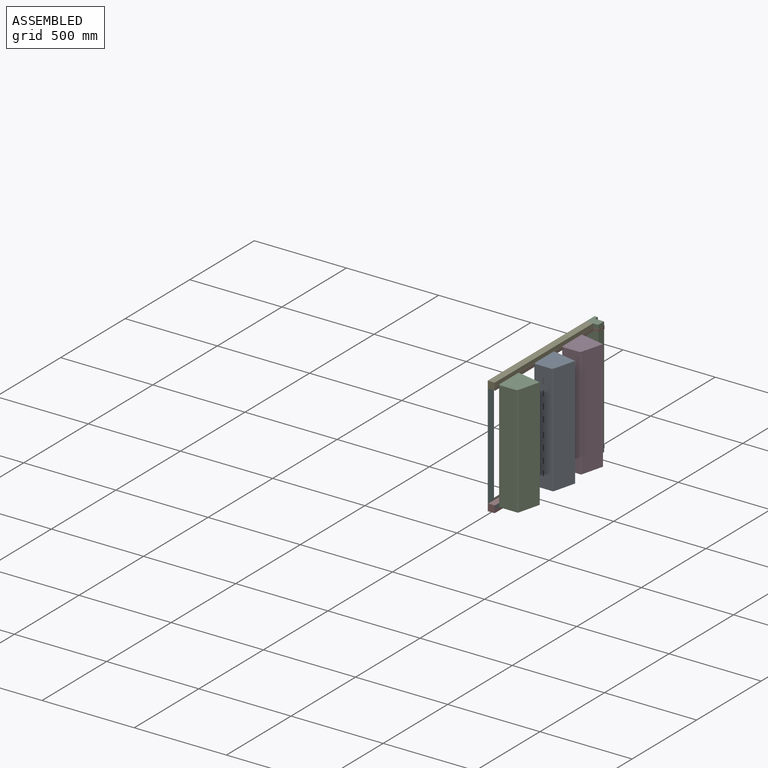
[diagram: assembled view]
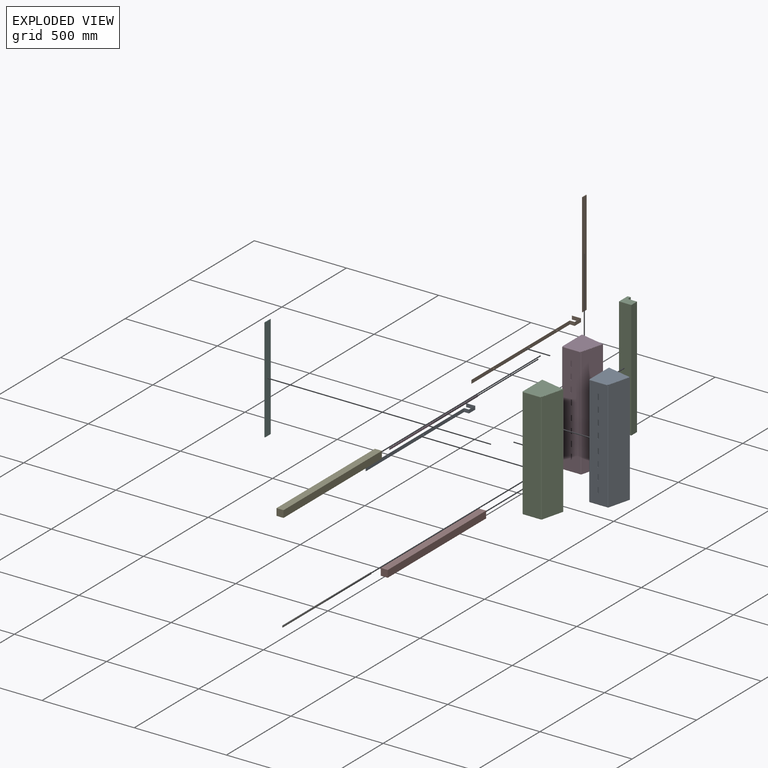
[diagram: exploded view]
GUIDED TOUR — MATED ASSEMBLY WITH SUBASSEMBLIES (Onshape document e24dba57bcac1407175b9171, AutoMate assembly e24dba57bcac1407175b9171_94eac4f6c8a923de0c3e7c80_e54bdbfbce681749a1011033_default)

This assembly has 24 component occurrences arranged in 12 top-level units: 10 individual components plus 2 subassemblies (S0, S1). The tour has two levels: first the top level, where each subassembly is treated as one rigid unit; then each subassembly is toured internally in its own section (nesting deeper than one subassembly level is flattened into its subassembly's section).

Components are labeled P0..P23 across the whole record; subassembly units are labeled S0..S1. A mate is a constraint between two units; its type names the relative motion it leaves free:
  FASTENED — locks the two components together rigidly (no relative motion),
  PLANAR — leaves sliding in the plane through the listed point (normal = the listed direction) and rotation about that normal free,
  SLIDER — leaves translation along the listed axis free.
Axis/direction vectors are unit vectors and 'through' points are millimeter coordinates, both in the assembly's world frame.

TOP-LEVEL MATES (between units; each subassembly's internal mates are listed in its own section)
  1. PLANAR "Planar 2": P10 <-> P3, direction (0.000, 1.000, 0.000) through (19.05, 0.00, -19.05) mm
  2. PLANAR "Planar 9": S0 <-> P3, direction (0.000, -1.000, 0.000) through (42.55, 45.72, -611.19) mm
  3. PLANAR "Planar 3": P3 <-> P10, direction (1.000, 0.000, 0.000) through (66.68, 22.22, 0.00) mm
  4. SLIDER "Slider 2": P15 <-> S1, axis (1.000, 0.000, 0.000) through (41.53, -319.53, -28.57) mm
  5. SLIDER "Slider 3": P19 <-> S0, axis (1.000, 0.000, 0.000) through (41.53, -593.34, -611.19) mm
  6. PLANAR "Planar 11": P15 <-> S0, direction (-1.000, 0.000, 0.000) through (40.77, -382.23, -319.89) mm
  7. PLANAR "Planar 5": S1 <-> P3, direction (0.000, -1.000, 0.000) through (42.54, 45.72, -28.57) mm
  8. FASTENED "Fastened 2": P14 <-> P3, direction (0.000, 1.000, 0.000) through (0.00, 0.00, -639.76) mm
  9. PLANAR "Planar 7": S0 <-> P14, direction (0.000, 0.000, 1.000) through (40.77, -2.03, -601.66) mm
  10. PLANAR "Planar 12": P19 <-> S1, direction (-1.000, 0.000, 0.000) through (40.77, -656.04, -319.87) mm
  11. FASTENED "Fastened 3": P10 <-> P11, direction (0.000, 0.000, -1.000) through (0.00, -762.00, -38.10) mm
  12. PLANAR "Planar 1": P10 <-> P3, direction (0.000, 0.000, 1.000) through (19.05, 0.00, 0.00) mm
  13. FASTENED "Fastened 5": P13 <-> P16, direction (0.000, 1.000, 0.000) through (0.00, -31.75, -601.66) mm
  14. PLANAR "Planar 6": S1 <-> P3, direction (-1.000, 0.000, 0.000) through (66.68, 22.22, -28.57) mm
  15. FASTENED "Fastened 4": P16 <-> P10, direction (0.000, 0.000, 1.000) through (0.00, 0.00, -38.10) mm
  16. PLANAR "Planar 4": S1 <-> P10, direction (0.000, 0.000, -1.000) through (40.00, -1.27, -38.10) mm
  17. PLANAR "Planar 10": P21 <-> S0, direction (-1.000, 0.000, 0.000) through (40.77, -166.11, -619.94) mm
  18. FASTENED "Fastened 6": P8 <-> P16, direction (0.000, 1.000, 0.000) through (0.00, -31.75, -38.10) mm
  19. SLIDER "Slider 1": S1 <-> P21, axis (1.000, 0.000, 0.000) through (43.18, -103.63, -28.57) mm
  20. PLANAR "Planar 8": S0 <-> P3, direction (-1.000, 0.000, 0.000) through (66.68, 22.22, -611.19) mm

TOP-LEVEL ASSEMBLY ORDER
  1. P21 — the base component [order verified]
  2. P15 [order verified]
  3. P19 [order verified]
  4. S0 [order verified]
  5. P14 [order verified]
  6. P16 [order verified]
  7. P3 [order verified]
  8. S1 [order verified]
  9. P8 [order verified]
  10. P13 [order verified]
  11. P10 [order verified]
  12. P11 [order verified]
Order-tag legend:
  [order verified] — this step's position reverses a verified removal order: the component was checked to insert without passing through the ones already placed.

Of the 24 component occurrences, 9 carry the full construction recipe — the FeatureScript program that regenerates the part's solid from scratch; the rest are supplied as boundary geometry only. Each toured unit is shown spotlighted twice — assembled, then exploded with a leader line back to its socket (green = recipe-attached component, orange = geometry-only, blue = subassembly unit; the rest desaturated gray).
NOTE — document 2 of 2 of this assembly tour. The two overview renders and the header above are repeated from document 1; the component sections below continue where the previous document stopped.
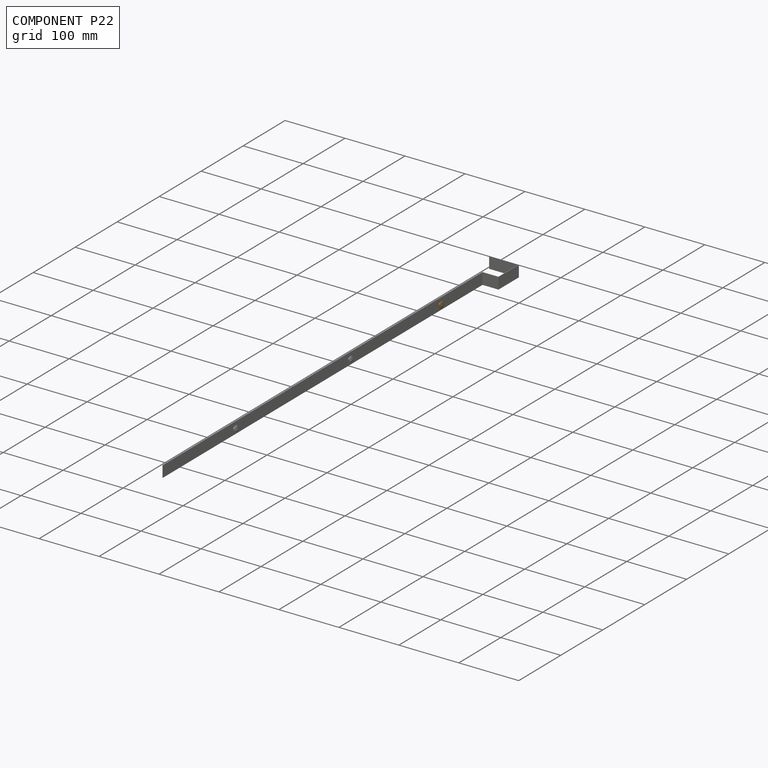
[diagram: component P22 — assembled]
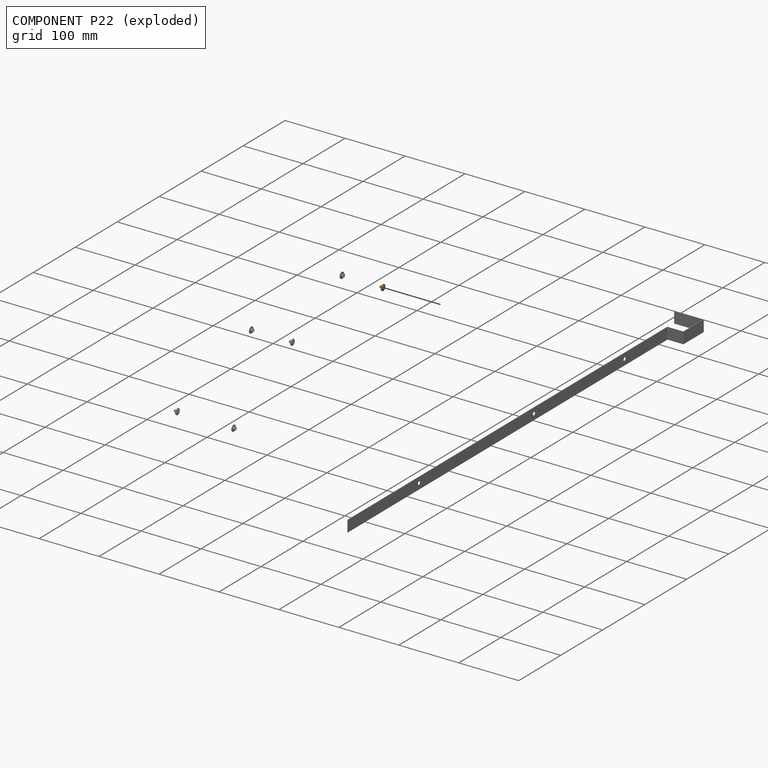
[diagram: component P22 — exploded]
COMPONENT P22 — geometry summary (no construction recipe available for this part):
  bounding box: 10.6 x 10.6 x 6.9 mm
  B-rep topology: 1 solid, 13 faces, 52 edges
  volume: 128 mm^3 (16% of its bounding box)
Held by: PLANAR mate "Planar 2" to P12; SLIDER mate "Slider 2" to P12; PLANAR mate "Planar 2" to P12; SLIDER mate "Slider 2" to P12.
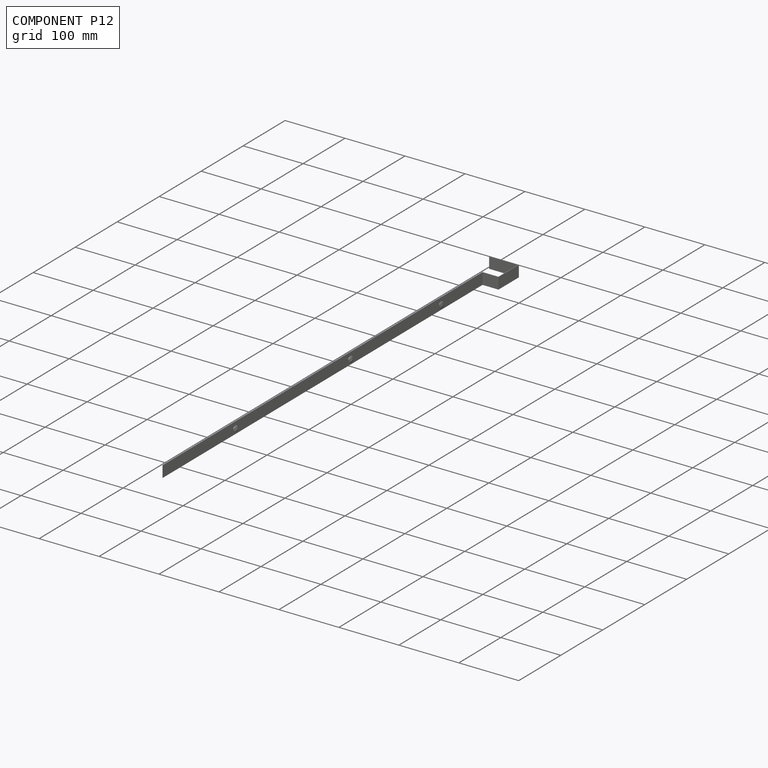
[diagram: component P12 — assembled]
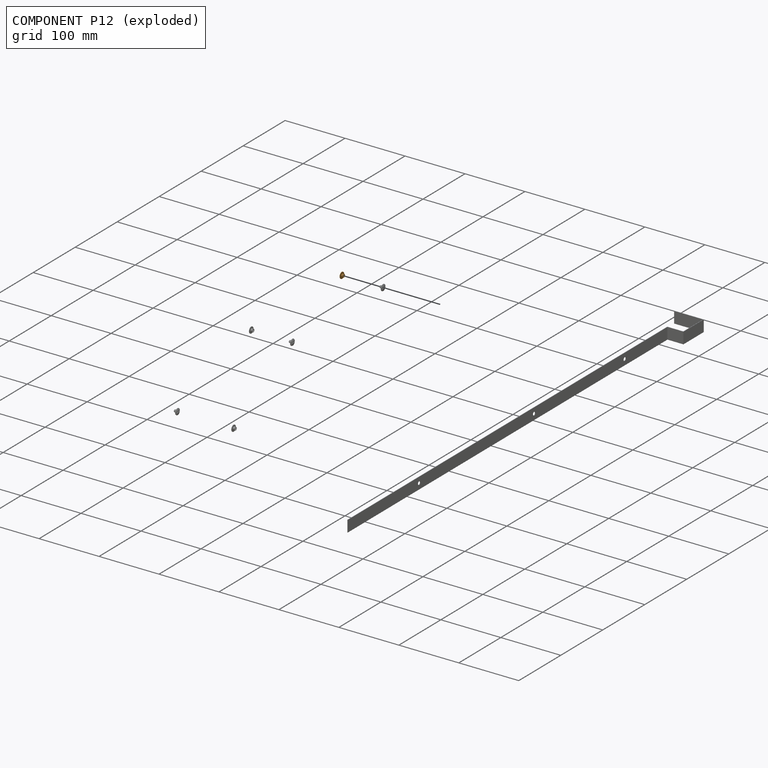
[diagram: component P12 — exploded]
COMPONENT P12 — geometry summary (no construction recipe available for this part):
  bounding box: 10.3 x 10.3 x 5.4 mm
  B-rep topology: 1 solid, 10 faces, 44 edges
  volume: 107 mm^3 (19% of its bounding box)
Held by: PLANAR mate "Planar 1" to P2; PLANAR mate "Planar 2" to P22; SLIDER mate "Slider 2" to P22; SLIDER mate "Slider 1" to P2; PLANAR mate "Planar 2" to P22; SLIDER mate "Slider 2" to P22; SLIDER mate "Slider 1" to P2; PLANAR mate "Planar 1" to P2.
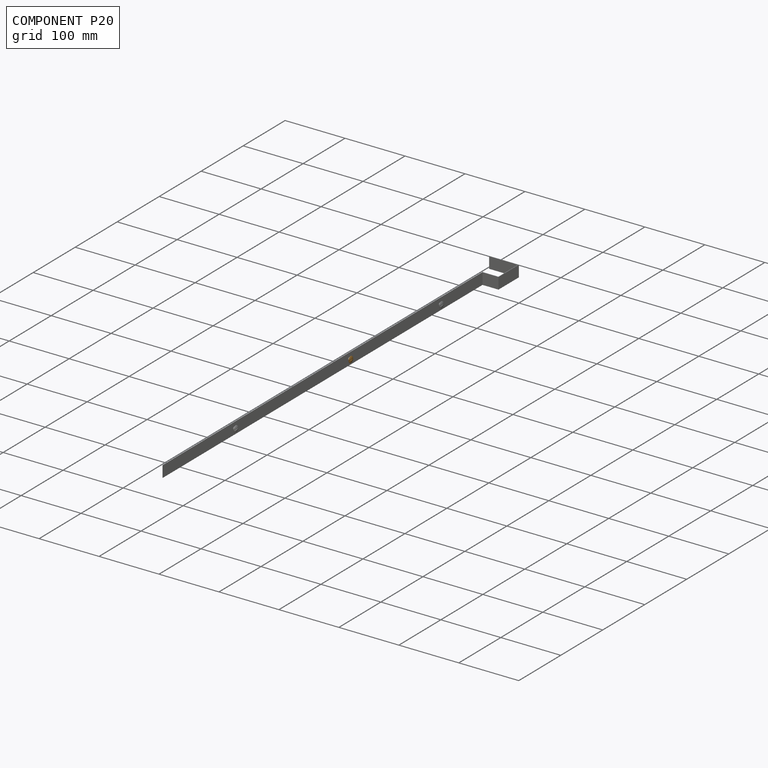
[diagram: component P20 — assembled]
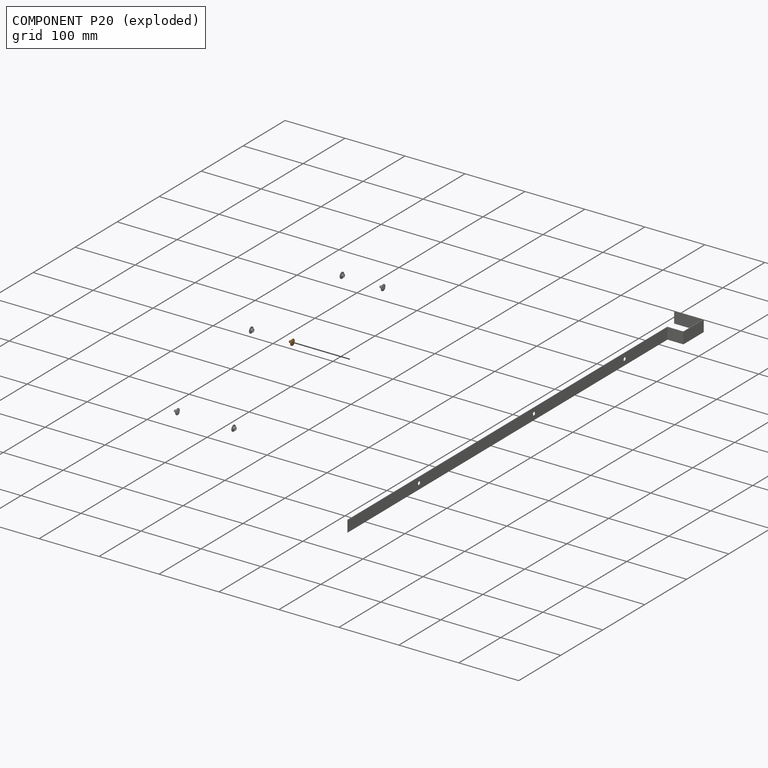
[diagram: component P20 — exploded]
COMPONENT P20 — geometry summary (no construction recipe available for this part):
  bounding box: 10.6 x 10.6 x 6.9 mm
  B-rep topology: 1 solid, 13 faces, 52 edges
  volume: 128 mm^3 (16% of its bounding box)
Held by: SLIDER mate "Slider 2" to P4; PLANAR mate "Planar 2" to P4; SLIDER mate "Slider 2" to P4; PLANAR mate "Planar 2" to P4.
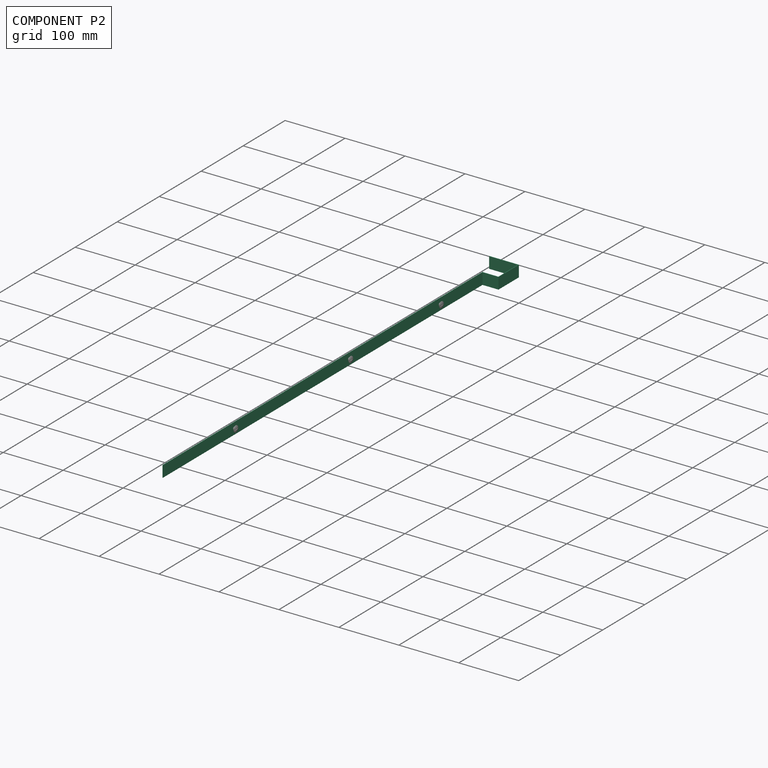
[diagram: component P2 — assembled]
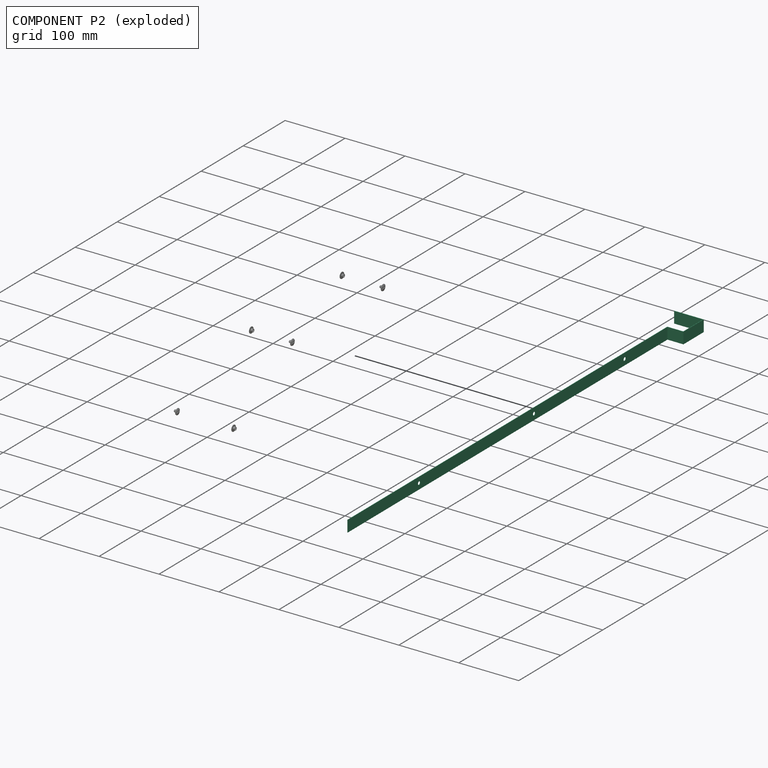
[diagram: component P2 — exploded]
COMPONENT P2 — recipe-attached (CADFS 00835865, mesh-verified: the recipe's output STEP matches this component's geometry to below the mesh-comparison resolution (tessellation chordal tolerance ~1.22 mm)).
Held by: PLANAR mate "Planar 1" to P12; SLIDER mate "Slider 4" to P4; SLIDER mate "Slider 3" to P23; FASTENED mate "Fastened 3" to P4; FASTENED mate "Fastened 2" to P23; SLIDER mate "Slider 1" to P12; FASTENED mate "Fastened 3" to P4; FASTENED mate "Fastened 2" to P23; SLIDER mate "Slider 1" to P12; SLIDER mate "Slider 4" to P4; SLIDER mate "Slider 3" to P23; PLANAR mate "Planar 1" to P12.
Construction recipe (FeatureScript — the CAD program that rebuilds this solid; sketch coordinates are in the units given by the * unit suffixes, e.g. mm):

FeatureScript 1511;
import(path : "onshape/std/geometry.fs", version : "1511.0");
import(path : "onshape/std/common.fs", version : "1511.0");
const mm = millimeter;
const VERTEX = EntityType.VERTEX;
const EDGE = EntityType.EDGE;
const FACE = EntityType.FACE;
const BODY = EntityType.BODY;
function v(x, y){return vector(x, y);}
function OD(order){return orderDisambiguation(order);}
function OSD(set){return originalSetDisambiguation(set);}
function TD(topology){return topologyDisambiguation(topology);}
function TDD(query){return trueDependencyDisambiguation(query);}
function sQuery(a, b, c) {return sketchEntityQuery(a, b, c);}

annotation { "Feature Type Name" : "Feature", "Feature Type Description" : "" }
export const myFeature = defineFeature(function(context is Context, id is Id, definition is map)
    precondition{}
    {
        {
            var Q0;
            Q0=qCreatedBy(makeId("Right.planeOp"),FACE);
            var sketch = newSketch(context, id + "F0", { "sketchPlane" : qUnion([Q0])});
            skLineSegment(sketch, "E0", {"start": v(0, 0) * mm, "end": v(48.26, 0) * mm});
            skLineSegment(sketch, "E1", {"start": v(48.26, 0) * mm, "end": v(48.26, -46.99) * mm});
            skLineSegment(sketch, "E2", {"start": v(48.26, -46.99) * mm, "end": v(21.6, -47) * mm});
            skLineSegment(sketch, "E3", {"start": v(21.6, -47) * mm, "end": v(21.6, -809) * mm});
            skLineSegment(sketch, "E4", {"start": v(21.6, -809) * mm, "end": v(22.35, -809) * mm});
            skLineSegment(sketch, "E5", {"start": v(22.35, -809) * mm, "end": v(22.35, -47.75) * mm});
            skLineSegment(sketch, "E6", {"start": v(22.35, -47.75) * mm, "end": v(49.02, -47.75) * mm});
            skLineSegment(sketch, "E7", {"start": v(49.02, -47.75) * mm, "end": v(49.02, 0.76) * mm});
            skLineSegment(sketch, "E8", {"start": v(49.02, 0.76) * mm, "end": v(0, 0.76) * mm});
            skLineSegment(sketch, "E9", {"start": v(0, 0.76) * mm, "end": v(0, 0) * mm});
            skPoint(sketch, "E10", {"position": v(49.02, 0.76) * mm});
            skSolve(sketch);
        }
        {
            var Q0;
            Q0 = qSketchRegion(id + "F0", true);
            extrude(context, id + "F1", {"entities" : qUnion([Q0]), "depth" : 19.05 * mm, "offsetDistance" : 25.4 * mm});
        }
        {
            var Q0;
            Q0=makeQuery(id+"F1.opExtrude","SWEPT_FACE",FACE,{"disambiguationData":[OSD([sQuery(id+"F0.wireOp",EDGE,"E5")])]});
            var sketch = newSketch(context, id + "F2", { "sketchPlane" : qUnion([Q0])});
            skCircle(sketch, "E11", {"center": v(-9.52, -149.35) * mm, "radius": 2.8 * mm});
            skLineSegment(sketch, "E12", {"start": v(-19.05, -94) * mm, "end": v(0, -94) * mm});
            skPoint(sketch, "E13", {"position": v(-9.53, -94) * mm});
            skCircle(sketch, "E14", {"center": v(-9.52, -365.25) * mm, "radius": 2.8 * mm});
            skCircle(sketch, "E15", {"center": v(-9.52, -639.06) * mm, "radius": 2.8 * mm});
            skSolve(sketch);
        }
        {
            var Q0;
            Q0 = qSketchRegion(id + "F2", true);
            extrude(context, id + "F3", {"entities" : qUnion([Q0]), "operationType" : NewBodyOperationType.REMOVE, "oppositeDirection" : true, "depth" : 25.4 * mm, "offsetDistance" : 25.4 * mm});
        }
    });
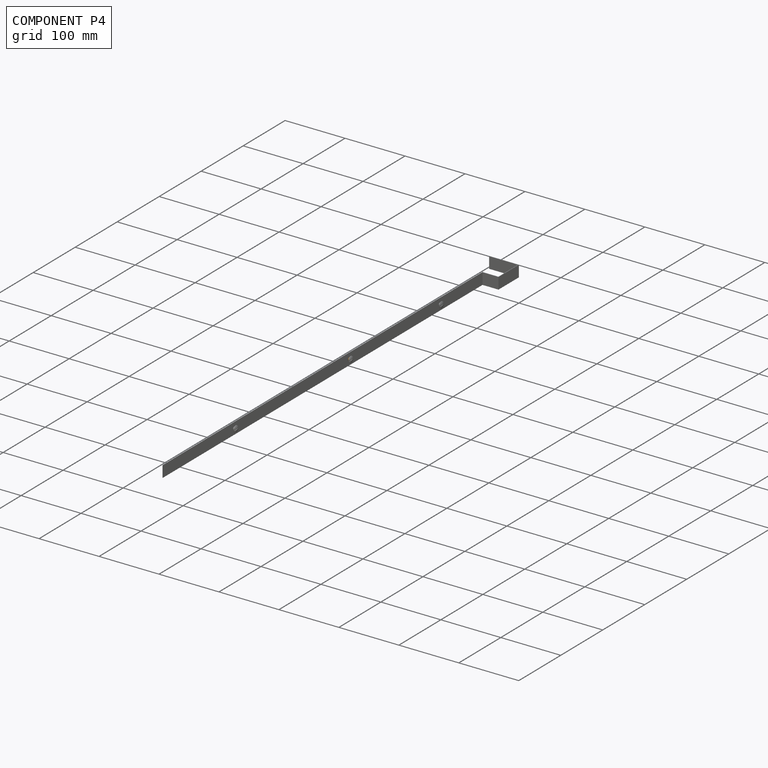
[diagram: component P4 — assembled]
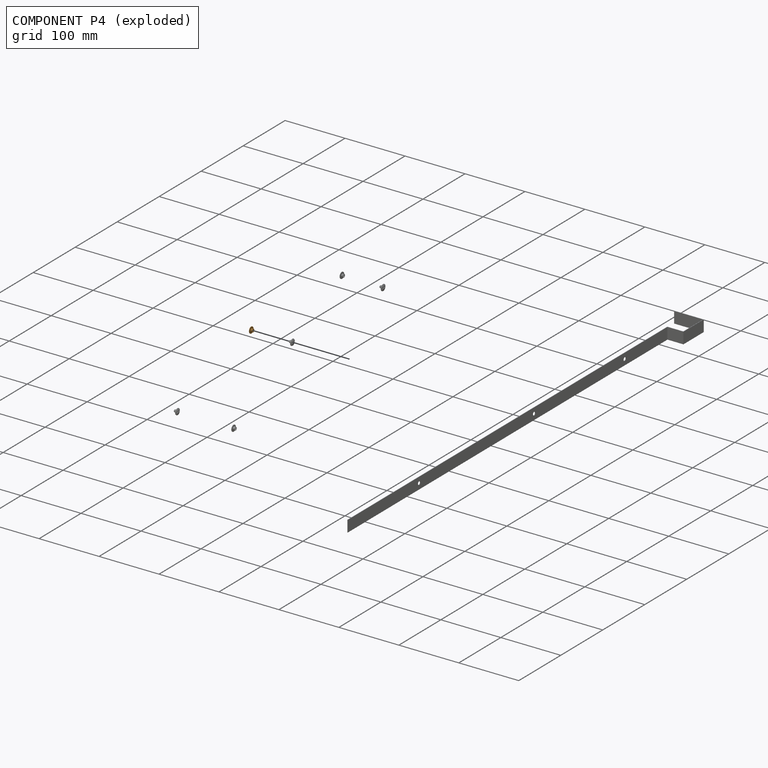
[diagram: component P4 — exploded]
COMPONENT P4 — geometry summary (no construction recipe available for this part):
  bounding box: 10.3 x 10.3 x 5.4 mm
  B-rep topology: 1 solid, 10 faces, 44 edges
  volume: 107 mm^3 (19% of its bounding box)
Held by: SLIDER mate "Slider 4" to P2; FASTENED mate "Fastened 3" to P2; SLIDER mate "Slider 2" to P20; PLANAR mate "Planar 2" to P20; SLIDER mate "Slider 2" to P20; PLANAR mate "Planar 2" to P20; FASTENED mate "Fastened 3" to P2; SLIDER mate "Slider 4" to P2.
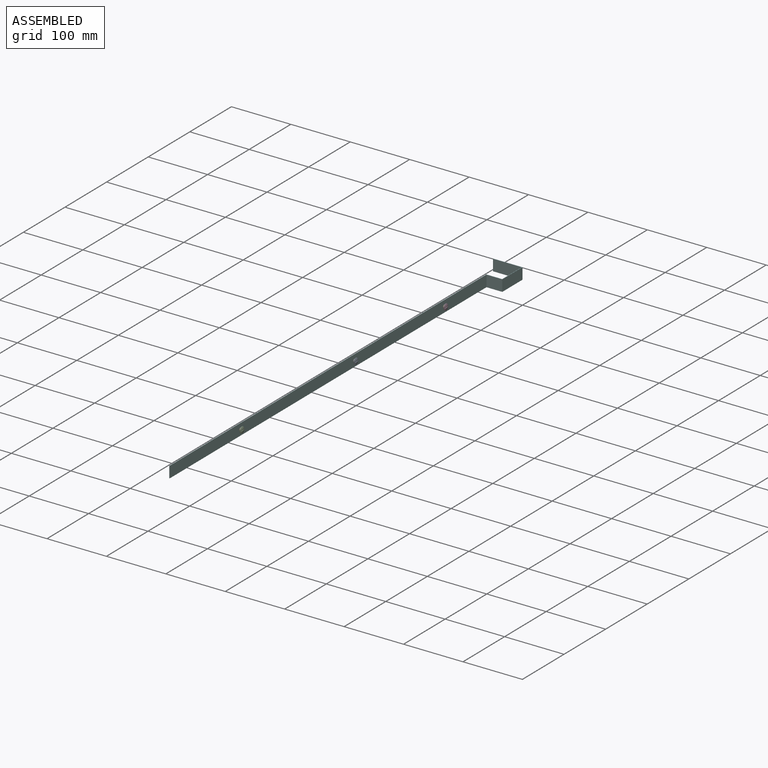
[diagram: subassembly S1 — assembled view]
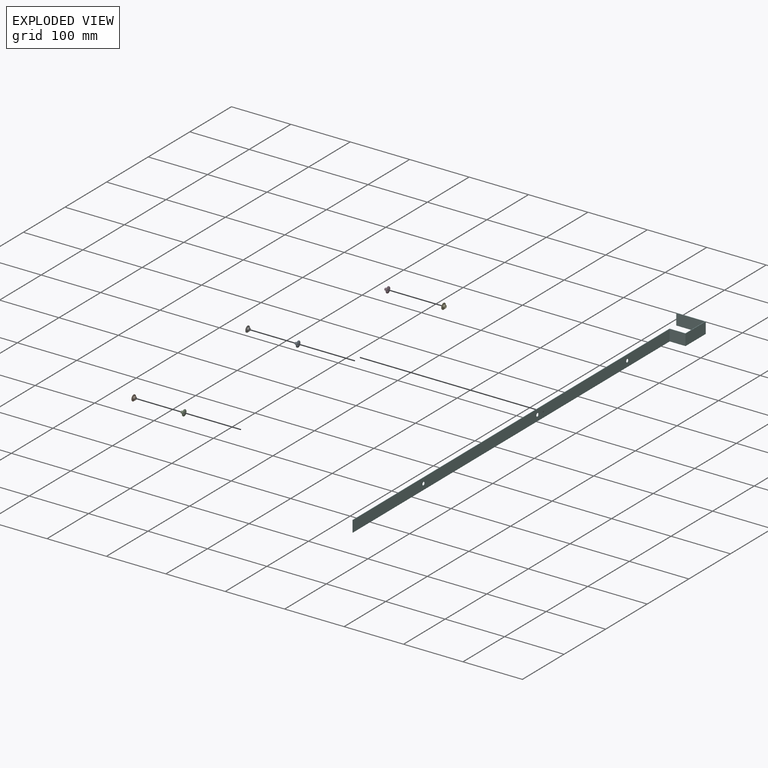
[diagram: subassembly S1 — exploded view]
SUBASSEMBLY S1 TOUR — 7 components, shown here in isolation at its own camera.

INTERNAL MATES
  1. PLANAR "Planar 1": P9 <-> P17, direction (1.000, 0.000, 0.000) through (40.00, -103.63, -28.57) mm
  2. PLANAR "Planar 2": P6 <-> P5, direction (-1.000, 0.000, 0.000) through (43.18, -593.34, -28.57) mm
  3. SLIDER "Slider 4": P18 <-> P17, axis (1.000, 0.000, 0.000) through (43.18, -319.53, -28.57) mm
  4. PLANAR "Planar 2": P7 <-> P9, direction (-1.000, 0.000, 0.000) through (43.18, -103.63, -28.57) mm
  5. SLIDER "Slider 2": P6 <-> P5, axis (-1.000, 0.000, 0.000) through (38.42, -593.34, -28.57) mm
  6. SLIDER "Slider 3": P5 <-> P17, axis (1.000, 0.000, 0.000) through (43.18, -593.34, -28.57) mm
  7. FASTENED "Fastened 3": P18 <-> P17, direction (1.000, 0.000, 0.000) through (40.00, -319.53, -28.57) mm
  8. SLIDER "Slider 2": P7 <-> P9, axis (-1.000, 0.000, 0.000) through (38.42, -103.63, -28.57) mm
  9. FASTENED "Fastened 2": P5 <-> P17, direction (1.000, 0.000, 0.000) through (40.00, -593.34, -28.57) mm
  10. SLIDER "Slider 2": P1 <-> P18, axis (-1.000, 0.000, 0.000) through (38.42, -319.53, -28.57) mm
  11. PLANAR "Planar 2": P1 <-> P18, direction (-1.000, 0.000, 0.000) through (43.18, -319.53, -28.57) mm
  12. SLIDER "Slider 1": P9 <-> P17, axis (1.000, 0.000, 0.000) through (43.18, -103.63, -28.57) mm
  13. SLIDER "Slider 2": P7 <-> P9, axis (-1.000, 0.000, 0.000) through (38.42, -103.63, -28.57) mm
  14. SLIDER "Slider 1": P9 <-> P17, axis (1.000, 0.000, 0.000) through (43.18, -103.63, -28.57) mm
  15. SLIDER "Slider 2": P6 <-> P5, axis (-1.000, 0.000, 0.000) through (38.42, -593.34, -28.57) mm
  16. SLIDER "Slider 4": P18 <-> P17, axis (1.000, 0.000, 0.000) through (43.18, -319.53, -28.57) mm
  17. FASTENED "Fastened 2": P5 <-> P17, direction (1.000, 0.000, 0.000) through (40.00, -593.34, -28.57) mm
  18. PLANAR "Planar 2": P1 <-> P18, direction (-1.000, 0.000, 0.000) through (43.18, -319.53, -28.57) mm
  19. PLANAR "Planar 2": P7 <-> P9, direction (-1.000, 0.000, 0.000) through (43.18, -103.63, -28.57) mm
  20. SLIDER "Slider 2": P1 <-> P18, axis (-1.000, 0.000, 0.000) through (38.42, -319.53, -28.57) mm
  21. PLANAR "Planar 2": P6 <-> P5, direction (-1.000, 0.000, 0.000) through (43.18, -593.34, -28.57) mm
  22. FASTENED "Fastened 3": P18 <-> P17, direction (1.000, 0.000, 0.000) through (40.00, -319.53, -28.57) mm
  23. PLANAR "Planar 1": P9 <-> P17, direction (1.000, 0.000, 0.000) through (40.00, -103.63, -28.57) mm
  24. SLIDER "Slider 3": P5 <-> P17, axis (1.000, 0.000, 0.000) through (43.18, -593.34, -28.57) mm

ASSEMBLY ORDER (within the subassembly)
  1. P9 — the base component [order verified]
  2. P7 [order verified]
  3. P1 [order verified]
  4. P17 [order verified]
  5. P6 [order verified]
  6. P5 [order verified]
  7. P18 [order verified]
(P5, P7, P18 verified with a relaxed clearance tolerance: the source model stores slight part interference there.)
Order-tag legend:
  [order verified] — this step's position reverses a verified removal order: the component was checked to insert without passing through the ones already placed.
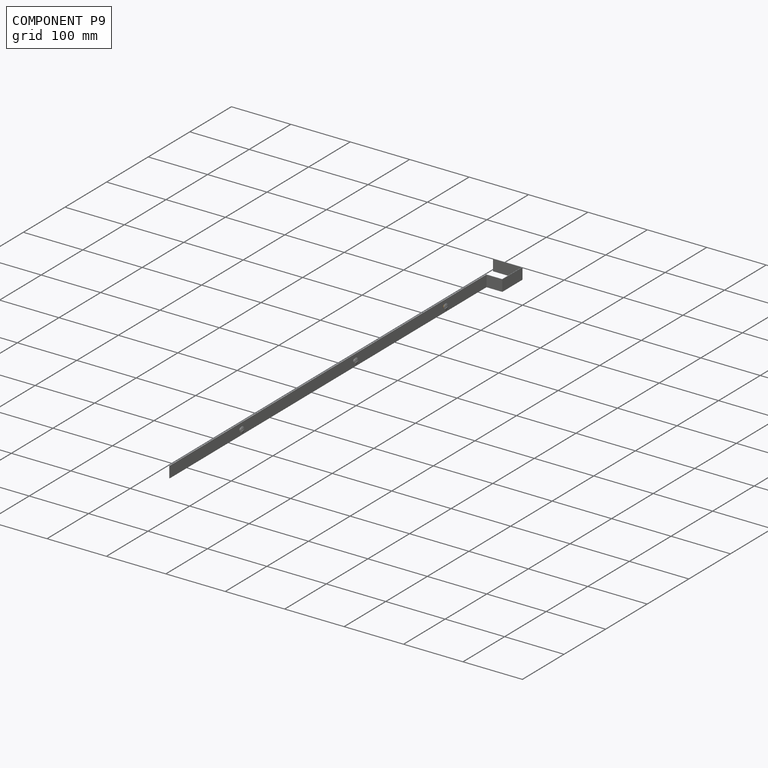
[diagram: component P9 — assembled]
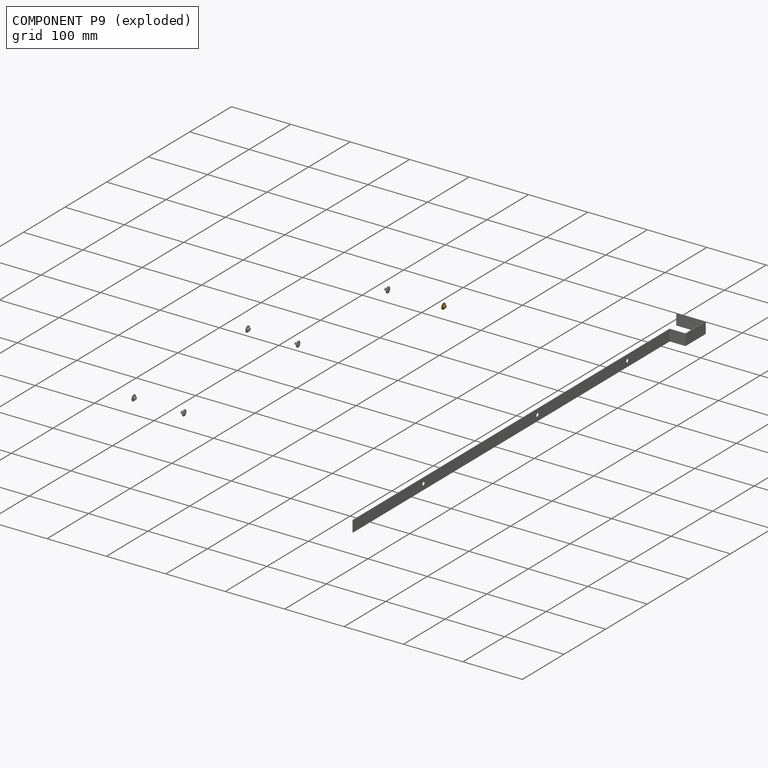
[diagram: component P9 — exploded]
COMPONENT P9 — geometry summary (no construction recipe available for this part):
  bounding box: 10.3 x 10.3 x 5.4 mm
  B-rep topology: 1 solid, 10 faces, 44 edges
  volume: 107 mm^3 (19% of its bounding box)
Held by: PLANAR mate "Planar 1" to P17; PLANAR mate "Planar 2" to P7; SLIDER mate "Slider 2" to P7; SLIDER mate "Slider 1" to P17; SLIDER mate "Slider 2" to P7; SLIDER mate "Slider 1" to P17; PLANAR mate "Planar 2" to P7; PLANAR mate "Planar 1" to P17.
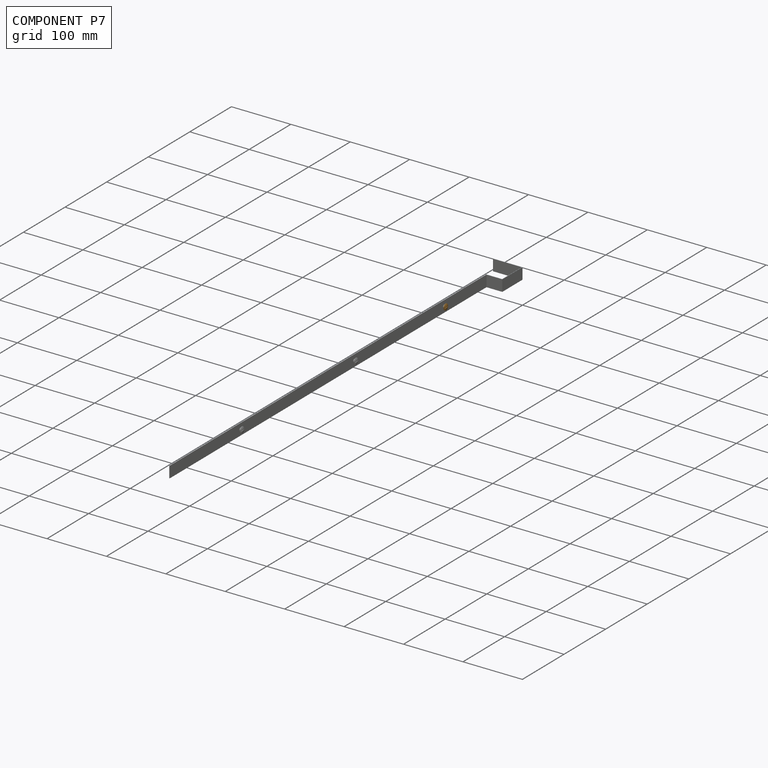
[diagram: component P7 — assembled]
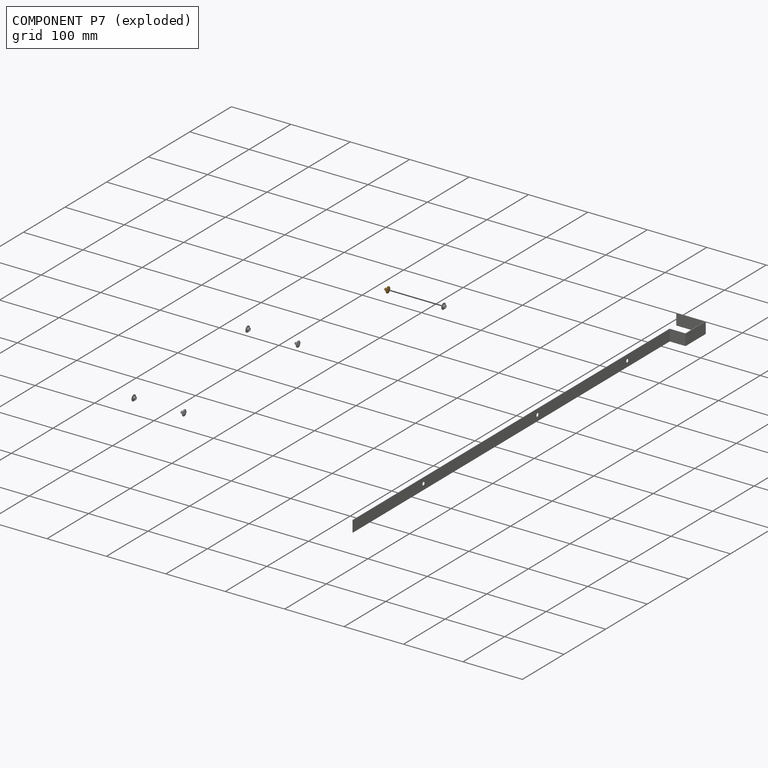
[diagram: component P7 — exploded]
COMPONENT P7 — geometry summary (no construction recipe available for this part):
  bounding box: 10.6 x 10.6 x 6.9 mm
  B-rep topology: 1 solid, 13 faces, 52 edges
  volume: 128 mm^3 (16% of its bounding box)
Held by: PLANAR mate "Planar 2" to P9; SLIDER mate "Slider 2" to P9; SLIDER mate "Slider 2" to P9; PLANAR mate "Planar 2" to P9.
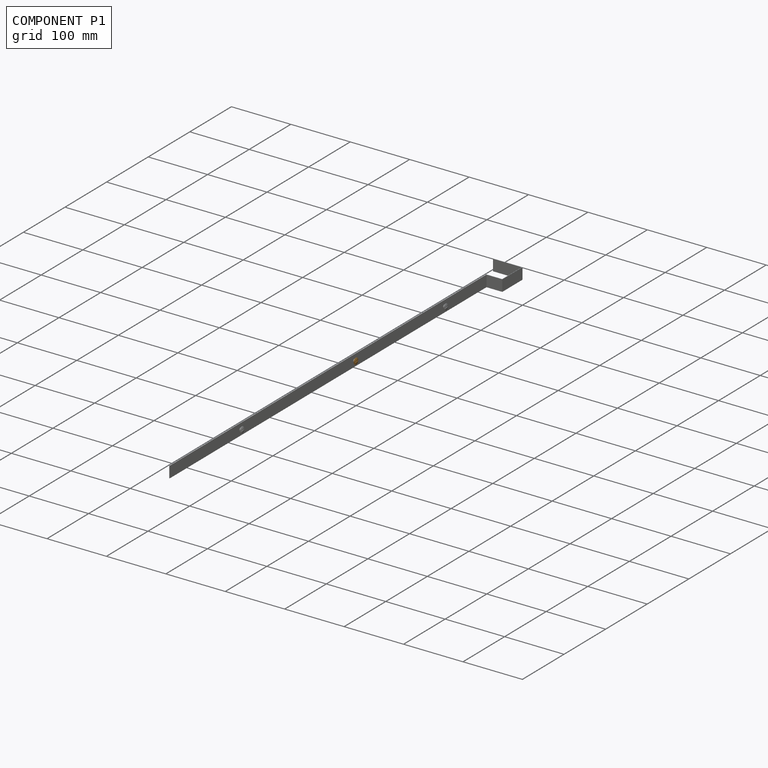
[diagram: component P1 — assembled]
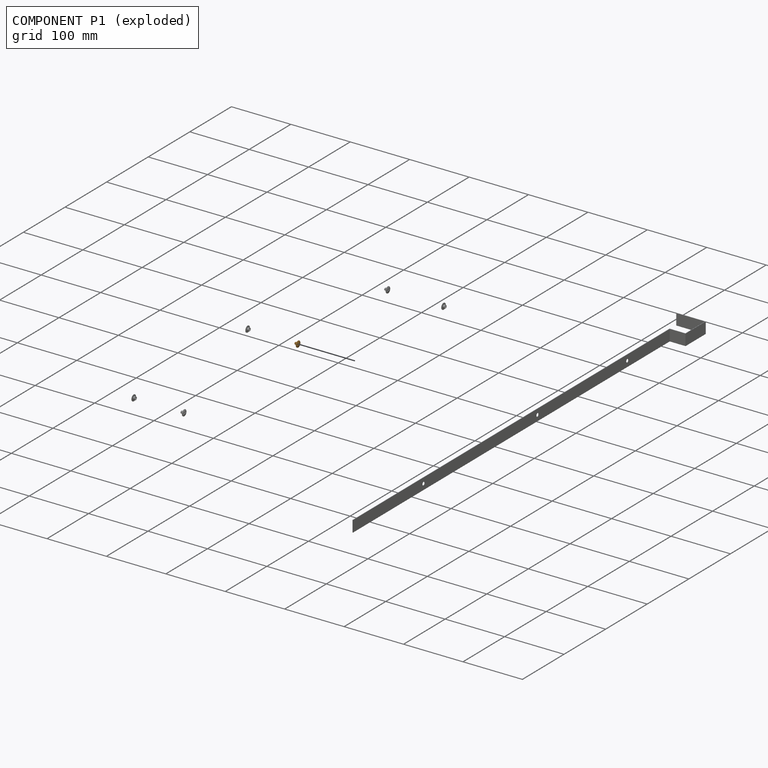
[diagram: component P1 — exploded]
COMPONENT P1 — geometry summary (no construction recipe available for this part):
  bounding box: 10.6 x 10.6 x 6.9 mm
  B-rep topology: 1 solid, 13 faces, 52 edges
  volume: 128 mm^3 (16% of its bounding box)
Held by: SLIDER mate "Slider 2" to P18; PLANAR mate "Planar 2" to P18; PLANAR mate "Planar 2" to P18; SLIDER mate "Slider 2" to P18.
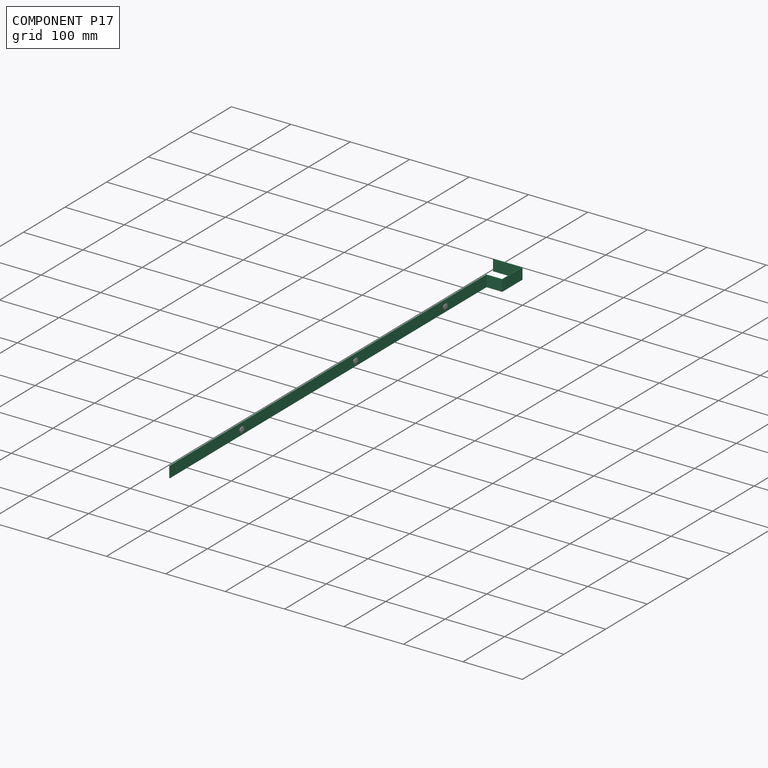
[diagram: component P17 — assembled]
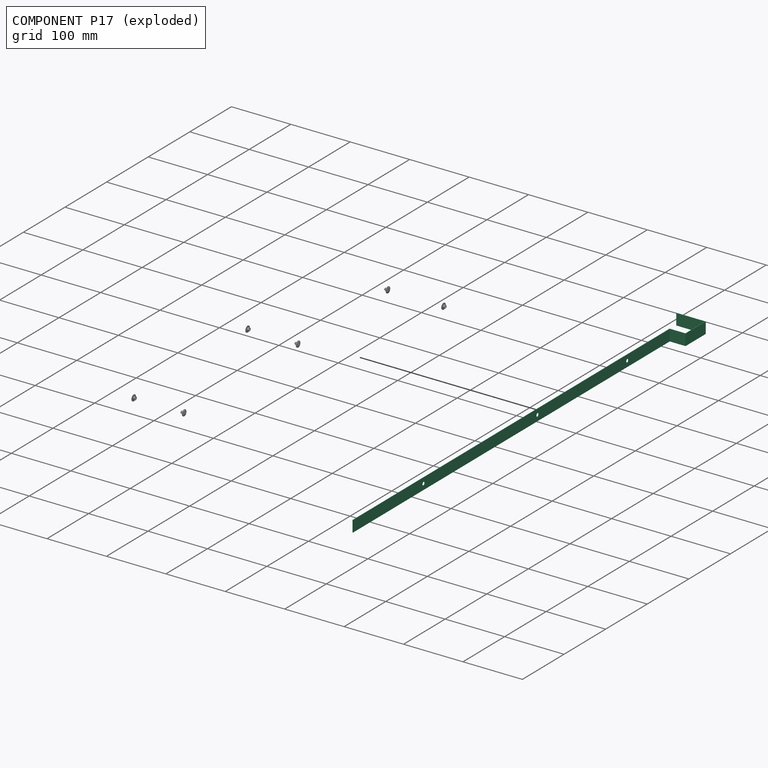
[diagram: component P17 — exploded]
COMPONENT P17 — recipe-attached (CADFS 00835865, mesh-verified: the recipe's output STEP matches this component's geometry to below the mesh-comparison resolution (tessellation chordal tolerance ~1.22 mm)).
Held by: PLANAR mate "Planar 1" to P9; SLIDER mate "Slider 4" to P18; SLIDER mate "Slider 3" to P5; FASTENED mate "Fastened 3" to P18; FASTENED mate "Fastened 2" to P5; SLIDER mate "Slider 1" to P9; SLIDER mate "Slider 1" to P9; SLIDER mate "Slider 4" to P18; FASTENED mate "Fastened 2" to P5; FASTENED mate "Fastened 3" to P18; PLANAR mate "Planar 1" to P9; SLIDER mate "Slider 3" to P5.
Construction recipe (FeatureScript — the CAD program that rebuilds this solid; sketch coordinates are in the units given by the * unit suffixes, e.g. mm):

FeatureScript 1511;
import(path : "onshape/std/geometry.fs", version : "1511.0");
import(path : "onshape/std/common.fs", version : "1511.0");
const mm = millimeter;
const VERTEX = EntityType.VERTEX;
const EDGE = EntityType.EDGE;
const FACE = EntityType.FACE;
const BODY = EntityType.BODY;
function v(x, y){return vector(x, y);}
function OD(order){return orderDisambiguation(order);}
function OSD(set){return originalSetDisambiguation(set);}
function TD(topology){return topologyDisambiguation(topology);}
function TDD(query){return trueDependencyDisambiguation(query);}
function sQuery(a, b, c) {return sketchEntityQuery(a, b, c);}

annotation { "Feature Type Name" : "Feature", "Feature Type Description" : "" }
export const myFeature = defineFeature(function(context is Context, id is Id, definition is map)
    precondition{}
    {
        {
            var Q0;
            Q0=qCreatedBy(makeId("Right.planeOp"),FACE);
            var sketch = newSketch(context, id + "F0", { "sketchPlane" : qUnion([Q0])});
            skLineSegment(sketch, "E0", {"start": v(0, 0) * mm, "end": v(48.26, 0) * mm});
            skLineSegment(sketch, "E1", {"start": v(48.26, 0) * mm, "end": v(48.26, -46.99) * mm});
            skLineSegment(sketch, "E2", {"start": v(48.26, -46.99) * mm, "end": v(21.6, -47) * mm});
            skLineSegment(sketch, "E3", {"start": v(21.6, -47) * mm, "end": v(21.6, -809) * mm});
            skLineSegment(sketch, "E4", {"start": v(21.6, -809) * mm, "end": v(22.35, -809) * mm});
            skLineSegment(sketch, "E5", {"start": v(22.35, -809) * mm, "end": v(22.35, -47.75) * mm});
            skLineSegment(sketch, "E6", {"start": v(22.35, -47.75) * mm, "end": v(49.02, -47.75) * mm});
            skLineSegment(sketch, "E7", {"start": v(49.02, -47.75) * mm, "end": v(49.02, 0.76) * mm});
            skLineSegment(sketch, "E8", {"start": v(49.02, 0.76) * mm, "end": v(0, 0.76) * mm});
            skLineSegment(sketch, "E9", {"start": v(0, 0.76) * mm, "end": v(0, 0) * mm});
            skPoint(sketch, "E10", {"position": v(49.02, 0.76) * mm});
            skSolve(sketch);
        }
        {
            var Q0;
            Q0 = qSketchRegion(id + "F0", true);
            extrude(context, id + "F1", {"entities" : qUnion([Q0]), "depth" : 19.05 * mm, "offsetDistance" : 25.4 * mm});
        }
        {
            var Q0;
            Q0=makeQuery(id+"F1.opExtrude","SWEPT_FACE",FACE,{"disambiguationData":[OSD([sQuery(id+"F0.wireOp",EDGE,"E5")])]});
            var sketch = newSketch(context, id + "F2", { "sketchPlane" : qUnion([Q0])});
            skCircle(sketch, "E11", {"center": v(-9.52, -149.35) * mm, "radius": 2.8 * mm});
            skLineSegment(sketch, "E12", {"start": v(-19.05, -94) * mm, "end": v(0, -94) * mm});
            skPoint(sketch, "E13", {"position": v(-9.53, -94) * mm});
            skCircle(sketch, "E14", {"center": v(-9.52, -365.25) * mm, "radius": 2.8 * mm});
            skCircle(sketch, "E15", {"center": v(-9.52, -639.06) * mm, "radius": 2.8 * mm});
            skSolve(sketch);
        }
        {
            var Q0;
            Q0 = qSketchRegion(id + "F2", true);
            extrude(context, id + "F3", {"entities" : qUnion([Q0]), "operationType" : NewBodyOperationType.REMOVE, "oppositeDirection" : true, "depth" : 25.4 * mm, "offsetDistance" : 25.4 * mm});
        }
    });
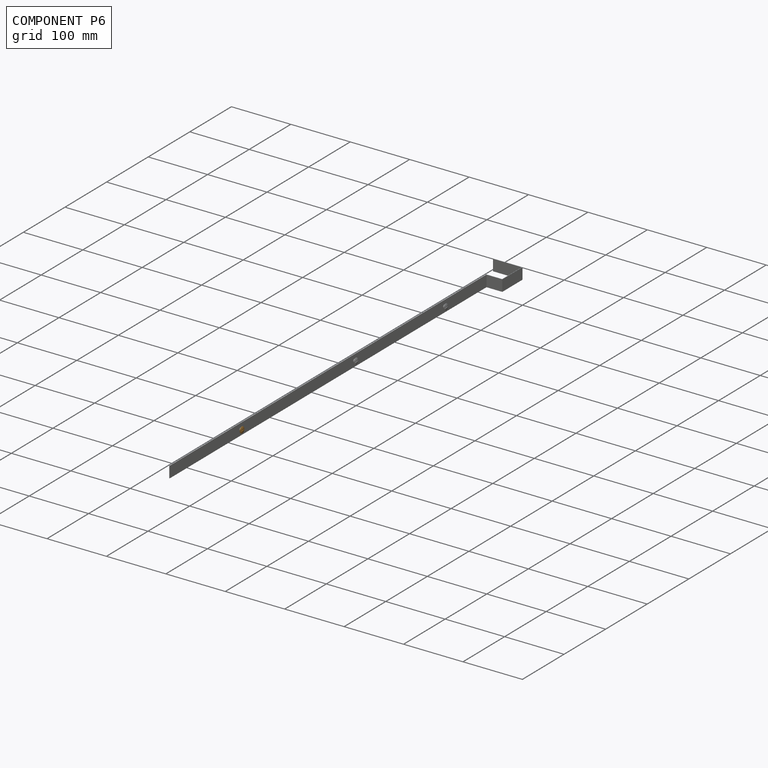
[diagram: component P6 — assembled]
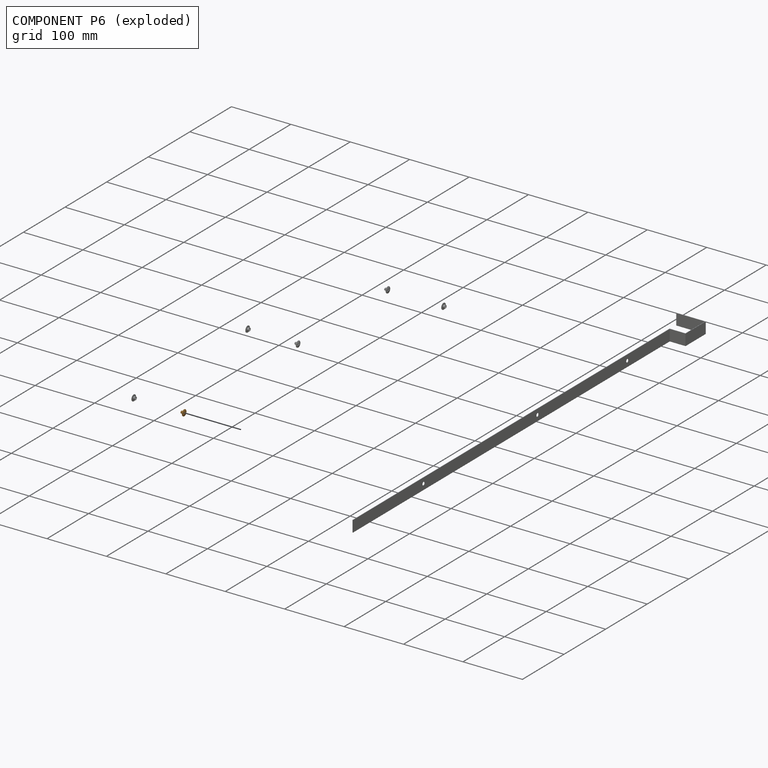
[diagram: component P6 — exploded]
COMPONENT P6 — geometry summary (no construction recipe available for this part):
  bounding box: 10.6 x 10.6 x 6.9 mm
  B-rep topology: 1 solid, 13 faces, 52 edges
  volume: 128 mm^3 (16% of its bounding box)
Held by: PLANAR mate "Planar 2" to P5; SLIDER mate "Slider 2" to P5; SLIDER mate "Slider 2" to P5; PLANAR mate "Planar 2" to P5.
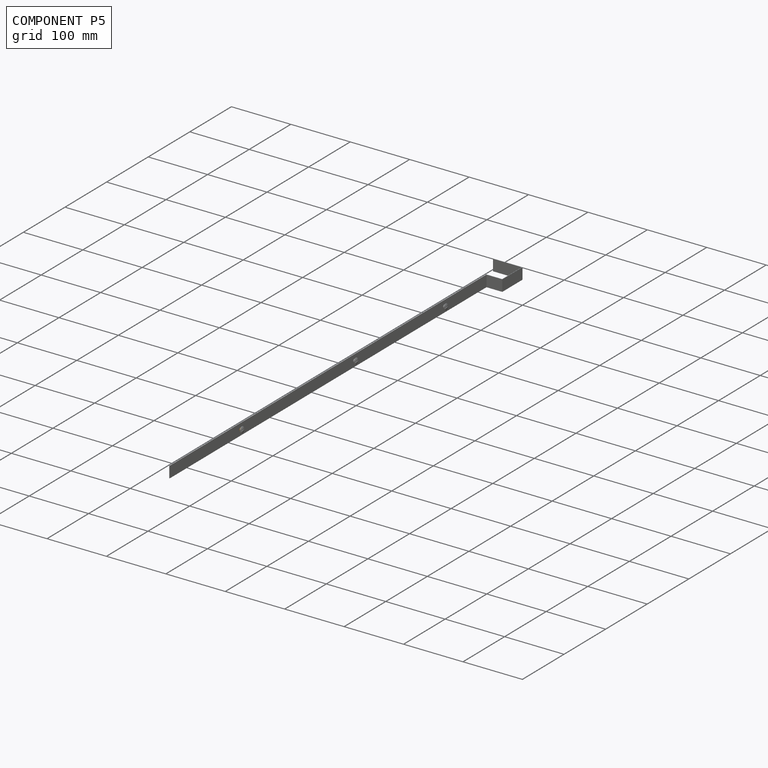
[diagram: component P5 — assembled]
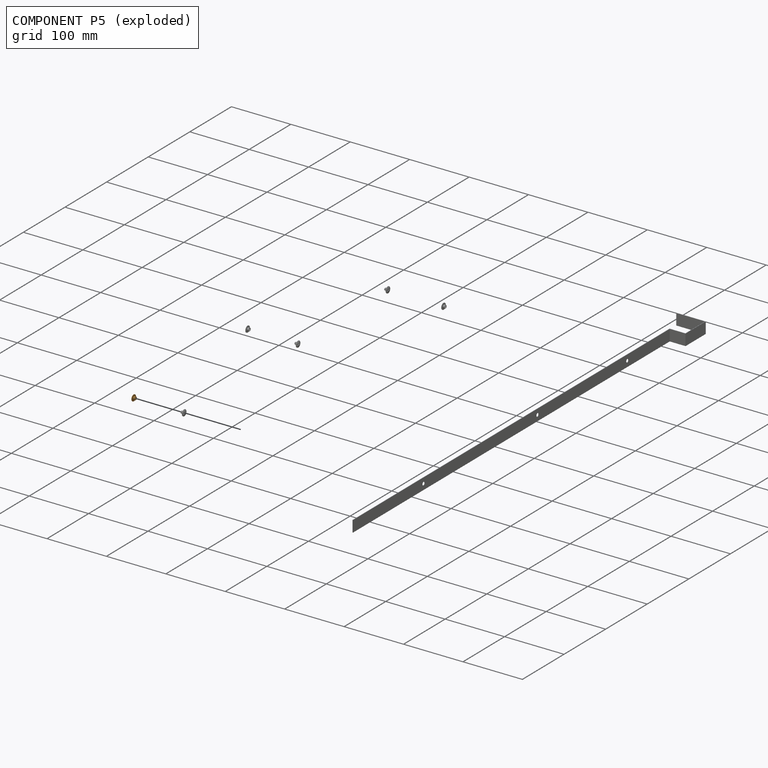
[diagram: component P5 — exploded]
COMPONENT P5 — geometry summary (no construction recipe available for this part):
  bounding box: 10.3 x 10.3 x 5.4 mm
  B-rep topology: 1 solid, 10 faces, 44 edges
  volume: 107 mm^3 (19% of its bounding box)
Held by: PLANAR mate "Planar 2" to P6; SLIDER mate "Slider 2" to P6; SLIDER mate "Slider 3" to P17; FASTENED mate "Fastened 2" to P17; SLIDER mate "Slider 2" to P6; FASTENED mate "Fastened 2" to P17; PLANAR mate "Planar 2" to P6; SLIDER mate "Slider 3" to P17.
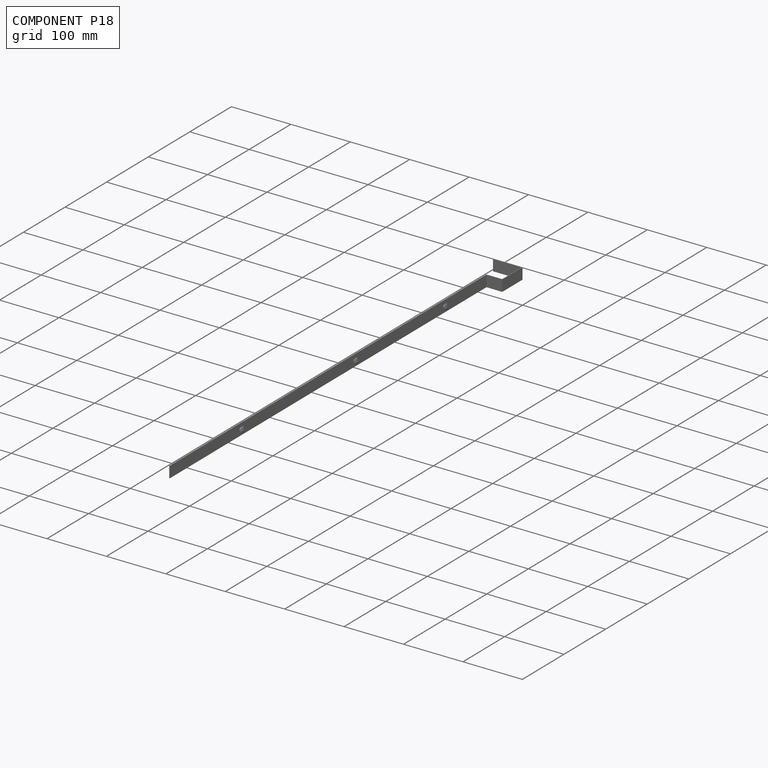
[diagram: component P18 — assembled]
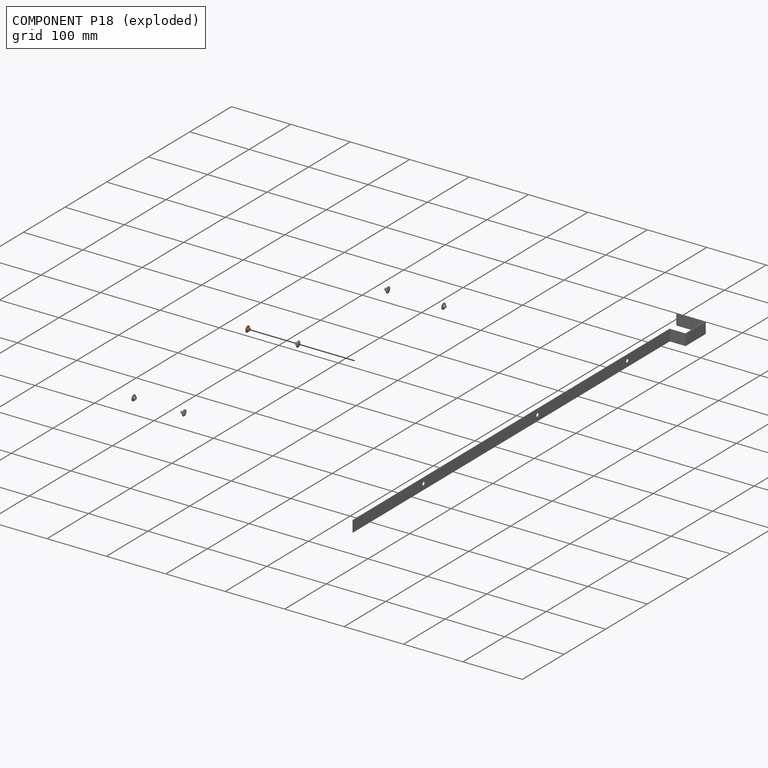
[diagram: component P18 — exploded]
COMPONENT P18 — geometry summary (no construction recipe available for this part):
  bounding box: 10.3 x 10.3 x 5.4 mm
  B-rep topology: 1 solid, 10 faces, 44 edges
  volume: 107 mm^3 (19% of its bounding box)
Held by: SLIDER mate "Slider 4" to P17; FASTENED mate "Fastened 3" to P17; SLIDER mate "Slider 2" to P1; PLANAR mate "Planar 2" to P1; SLIDER mate "Slider 4" to P17; PLANAR mate "Planar 2" to P1; SLIDER mate "Slider 2" to P1; FASTENED mate "Fastened 3" to P17.
PROVENANCE & LICENSES
Assembly (occurrences, transforms, mates, per-part STEP geometry): AutoMate dataset, Zenodo record 7776208, CC0.
Construction recipes: CADFS (HuggingFace VladPyatov/CADFS, CC-BY-4.0, layered over the ABC dataset), FeatureScript reconstruction programs keyed by ABC model id.
Join: ABC meta listings map ABC model id -> Onshape documentId; within a shared document, parts are matched by geometric signature (bounding-box dims + volume at 0.1% relative tolerance, exact B-rep face/solid counts).
Verification: 9 of this assembly's 24 components carry a recipe attachment, and every attachment is mesh-verified: the CADFS STEP and the AutoMate member STEP were compared as meshes in their shared local frame (symmetric sampled-point-to-mesh distance); worst across the 9 attachments: below the mesh-comparison resolution (tessellation chordal tolerance ~1.22 mm) on a 811 mm part.
Renders: orthographic iso camera (az 35 / el 25); the floor grid conveys scale (grid pitch printed in each image; no ruler). In the exploded view each component is displaced by its stored offset vector: the offsets alone carry the explosion direction (mate normal/axis signs are not orientation cues and do not encode it), and separation distances are assigned per mate-chain, not proportionally to assembly-order depth.
